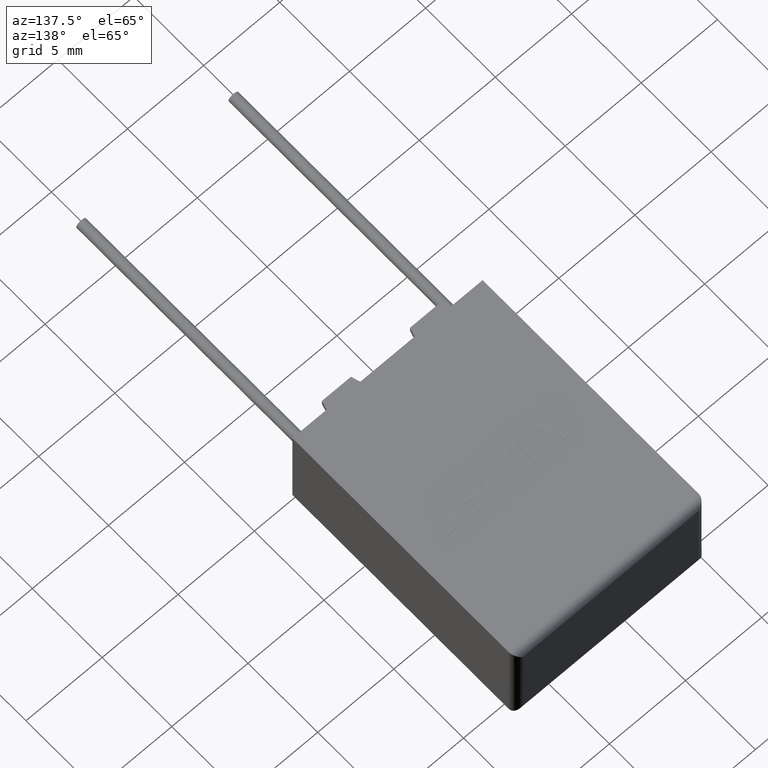
[diagram: clean part render]
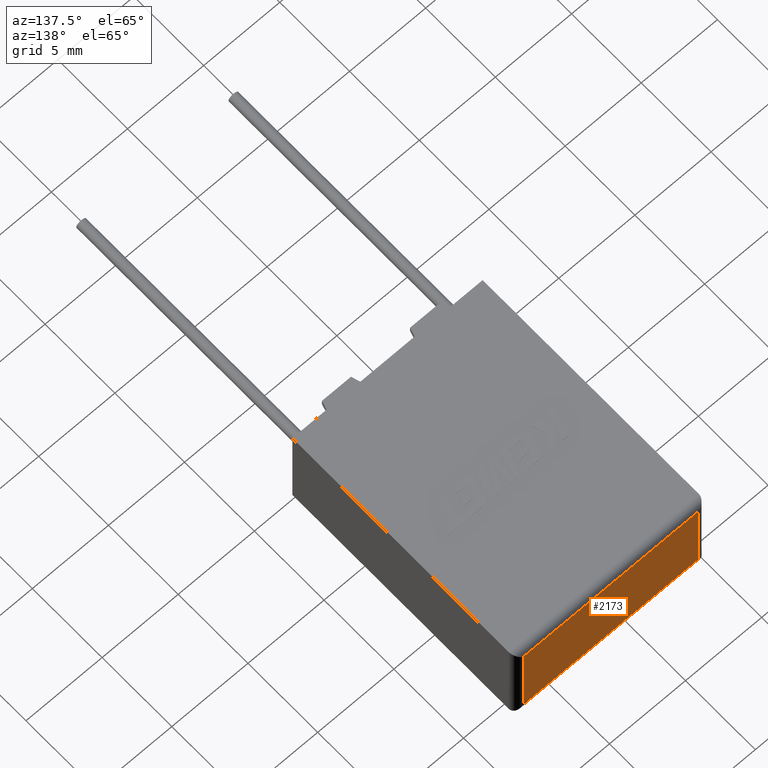
[diagram: same view with one face highlighted and labeled with its STEP entity id]
A machine part, auxiliary view. The second image highlights one B-rep face of the part: STEP entity #2173.
In plain terms, the highlighted planar face has unit normal (0, -1, 0).
Its self-contained STEP definition (entity closure, byte-faithful):
#76 = ORIENTED_EDGE ( 'NONE', *, *, #2735, .T. ) ;
#561 = CARTESIAN_POINT ( 'NONE',  ( 0.4999999999999998900, 16.00000000000000000, 6.500000000000000000 ) ) ;
#619 = LINE ( 'NONE', #561, #774 ) ;
#652 = ORIENTED_EDGE ( 'NONE', *, *, #2998, .T. ) ;
#727 = EDGE_CURVE ( 'NONE', #2927, #3244, #1434, .T. ) ;
#774 = VECTOR ( 'NONE', #1847, 1000.000000000000000 ) ;
#852 = PLANE ( 'NONE',  #1125 ) ;
#1125 = AXIS2_PLACEMENT_3D ( 'NONE', #1187, #3138, #1899 ) ;
#1140 = LINE ( 'NONE', #1958, #1888 ) ;
#1187 = CARTESIAN_POINT ( 'NONE',  ( 0.0000000000000000000, 16.00000000000000000, 6.500000000000000000 ) ) ;
#1416 = EDGE_LOOP ( 'NONE', ( #2032, #76, #1938, #652 ) ) ;
#1434 = LINE ( 'NONE', #2063, #2088 ) ;
#1456 = DIRECTION ( 'NONE',  ( 1.000000000000000000, -0.0000000000000000000, -0.0000000000000000000 ) ) ;
#1542 = EDGE_CURVE ( 'NONE', #2252, #2111, #1140, .T. ) ;
#1605 = CARTESIAN_POINT ( 'NONE',  ( 12.00000000000000000, 16.00000000000000000, 6.000000000000000000 ) ) ;
#1729 = LINE ( 'NONE', #2857, #2449 ) ;
#1847 = DIRECTION ( 'NONE',  ( -0.0000000000000000000, -0.0000000000000000000, 1.000000000000000000 ) ) ;
#1870 = DIRECTION ( 'NONE',  ( 0.0000000000000000000, 0.0000000000000000000, -1.000000000000000000 ) ) ;
#1888 = VECTOR ( 'NONE', #1456, 1000.000000000000000 ) ;
#1899 = DIRECTION ( 'NONE',  ( 0.0000000000000000000, -0.0000000000000000000, -1.000000000000000000 ) ) ;
#1938 = ORIENTED_EDGE ( 'NONE', *, *, #727, .T. ) ;
#1954 = CARTESIAN_POINT ( 'NONE',  ( 0.4999999999999998900, 16.00000000000000000, 0.4999999999999995600 ) ) ;
#1958 = CARTESIAN_POINT ( 'NONE',  ( 0.0000000000000000000, 16.00000000000000000, 6.000000000000000000 ) ) ;
#1974 = CARTESIAN_POINT ( 'NONE',  ( 12.00000000000000000, 16.00000000000000000, 0.4999999999999995600 ) ) ;
#2032 = ORIENTED_EDGE ( 'NONE', *, *, #1542, .T. ) ;
#2063 = CARTESIAN_POINT ( 'NONE',  ( 0.0000000000000000000, 16.00000000000000000, 0.4999999999999995600 ) ) ;
#2088 = VECTOR ( 'NONE', #2287, 1000.000000000000000 ) ;
#2111 = VERTEX_POINT ( 'NONE', #1605 ) ;
#2173 = ADVANCED_FACE ( 'NONE', ( #2238 ), #852, .F. ) ;
#2238 = FACE_OUTER_BOUND ( 'NONE', #1416, .T. ) ;
#2252 = VERTEX_POINT ( 'NONE', #2390 ) ;
#2287 = DIRECTION ( 'NONE',  ( -1.000000000000000000, 0.0000000000000000000, 0.0000000000000000000 ) ) ;
#2390 = CARTESIAN_POINT ( 'NONE',  ( 0.4999999999999998900, 16.00000000000000000, 6.000000000000000000 ) ) ;
#2449 = VECTOR ( 'NONE', #1870, 1000.000000000000000 ) ;
#2735 = EDGE_CURVE ( 'NONE', #2111, #2927, #1729, .T. ) ;
#2857 = CARTESIAN_POINT ( 'NONE',  ( 12.00000000000000000, 16.00000000000000000, 6.500000000000000000 ) ) ;
#2927 = VERTEX_POINT ( 'NONE', #1974 ) ;
#2998 = EDGE_CURVE ( 'NONE', #3244, #2252, #619, .T. ) ;
#3138 = DIRECTION ( 'NONE',  ( 0.0000000000000000000, -1.000000000000000000, 0.0000000000000000000 ) ) ;
#3244 = VERTEX_POINT ( 'NONE', #1954 ) ;